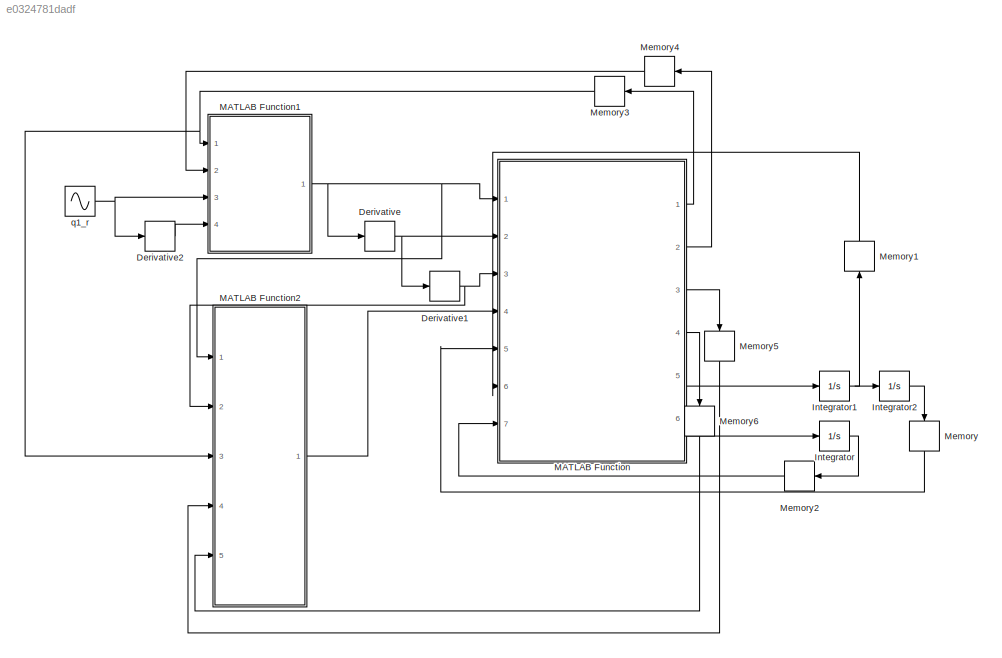
MODEL slx_e0324781dadf
KIND model
CONFIG AbsTol = auto
CONFIG EnableMultiTasking = off
CONFIG FixedStep = 0.001
CONFIG MaxStep = auto
CONFIG MinStep = auto
CONFIG RelTol = 1e-3
CONFIG SampleTimeConstraint = Unconstrained
CONFIG Solver = FixedStepAuto
CONFIG SolverName = FixedStepAuto
CONFIG StartTime = 0.0
CONFIG StopTime = 10.0
BLOCK [Derivative] Derivative
BLOCK [Derivative] Derivative1
BLOCK [Derivative] Derivative2
BLOCK [Integrator] Integrator
  Ports = [1, 1]
BLOCK [Integrator] Integrator1
  Ports = [1, 1]
BLOCK [Integrator] Integrator2
  Ports = [1, 1]
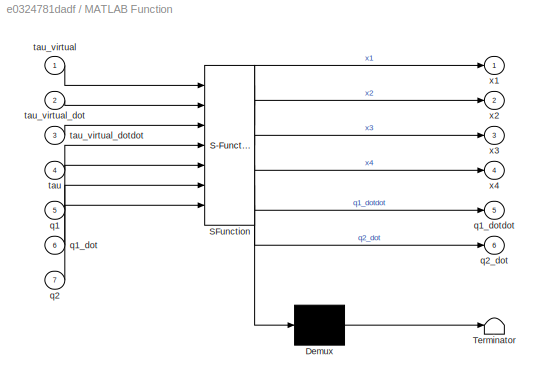
BLOCK [SubSystem] MATLAB Function
  ErrorFcn = Stateflow.Translate.translate
  PermitHierarchicalResolution = ExplicitOnly
  Ports = [7, 6]
  RequestExecContextInheritance = off
  SFBlockType = MATLAB Function
  TreatAsAtomicUnit = on
BLOCK [Demux] MATLAB Function/ Demux 
  Outputs = 1
  Ports = [1, 1]
BLOCK [S-Function] MATLAB Function/ SFunction 
  EnableBusSupport = on
  FunctionName = sf_sfun
  PortCounts = [7 7]
  Ports = [7, 7]
  SFcnIsStateOwnerBlock = off
  SFunctionDeploymentMode = off
  Tag = Stateflow S-Function motor_error 2
BLOCK [Terminator] MATLAB Function/ Terminator 
BLOCK [Inport] MATLAB Function/q1
  IconDisplay = Port number
  Port = 5
BLOCK [Inport] MATLAB Function/q1_dot
  IconDisplay = Port number
  Port = 6
BLOCK [Outport] MATLAB Function/q1_dotdot
  IconDisplay = Port number
  Port = 5
BLOCK [Inport] MATLAB Function/q2
  IconDisplay = Port number
  Port = 7
BLOCK [Outport] MATLAB Function/q2_dot
  IconDisplay = Port number
  Port = 6
BLOCK [Inport] MATLAB Function/tau
  IconDisplay = Port number
  Port = 4
BLOCK [Inport] MATLAB Function/tau_virtual
  IconDisplay = Port number
BLOCK [Inport] MATLAB Function/tau_virtual_dot
  IconDisplay = Port number
  Port = 2
BLOCK [Inport] MATLAB Function/tau_virtual_dotdot
  IconDisplay = Port number
  Port = 3
BLOCK [Outport] MATLAB Function/x1
  IconDisplay = Port number
BLOCK [Outport] MATLAB Function/x2
  IconDisplay = Port number
  Port = 2
BLOCK [Outport] MATLAB Function/x3
  IconDisplay = Port number
  Port = 3
BLOCK [Outport] MATLAB Function/x4
  IconDisplay = Port number
  Port = 4
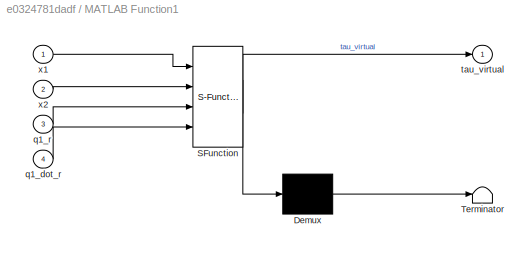
BLOCK [SubSystem] MATLAB Function1
  ErrorFcn = Stateflow.Translate.translate
  PermitHierarchicalResolution = ExplicitOnly
  Ports = [4, 1]
  RequestExecContextInheritance = off
  SFBlockType = MATLAB Function
  TreatAsAtomicUnit = on
BLOCK [Demux] MATLAB Function1/ Demux 
  Outputs = 1
  Ports = [1, 1]
BLOCK [S-Function] MATLAB Function1/ SFunction 
  EnableBusSupport = on
  FunctionName = sf_sfun
  PortCounts = [4 2]
  Ports = [4, 2]
  SFcnIsStateOwnerBlock = off
  SFunctionDeploymentMode = off
  Tag = Stateflow S-Function motor_error 1
BLOCK [Terminator] MATLAB Function1/ Terminator 
BLOCK [Inport] MATLAB Function1/q1_dot_r
  IconDisplay = Port number
  Port = 4
BLOCK [Inport] MATLAB Function1/q1_r
  IconDisplay = Port number
  Port = 3
BLOCK [Outport] MATLAB Function1/tau_virtual
  IconDisplay = Port number
BLOCK [Inport] MATLAB Function1/x1
  IconDisplay = Port number
BLOCK [Inport] MATLAB Function1/x2
  IconDisplay = Port number
  Port = 2
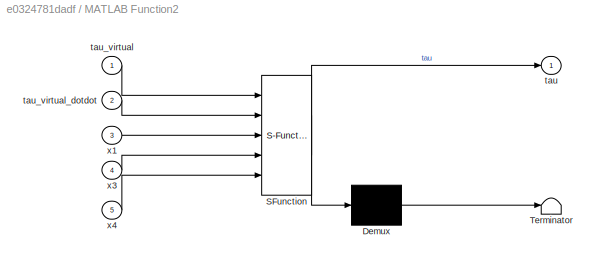
BLOCK [SubSystem] MATLAB Function2
  ErrorFcn = Stateflow.Translate.translate
  PermitHierarchicalResolution = ExplicitOnly
  Ports = [5, 1]
  RequestExecContextInheritance = off
  SFBlockType = MATLAB Function
  TreatAsAtomicUnit = on
BLOCK [Demux] MATLAB Function2/ Demux 
  Outputs = 1
  Ports = [1, 1]
BLOCK [S-Function] MATLAB Function2/ SFunction 
  EnableBusSupport = on
  FunctionName = sf_sfun
  PortCounts = [5 2]
  Ports = [5, 2]
  SFcnIsStateOwnerBlock = off
  SFunctionDeploymentMode = off
  Tag = Stateflow S-Function motor_error 3
BLOCK [Terminator] MATLAB Function2/ Terminator 
BLOCK [Outport] MATLAB Function2/tau
  IconDisplay = Port number
BLOCK [Inport] MATLAB Function2/tau_virtual
  IconDisplay = Port number
BLOCK [Inport] MATLAB Function2/tau_virtual_dotdot
  IconDisplay = Port number
  Port = 2
BLOCK [Inport] MATLAB Function2/x1
  IconDisplay = Port number
  Port = 3
BLOCK [Inport] MATLAB Function2/x3
  IconDisplay = Port number
  Port = 4
BLOCK [Inport] MATLAB Function2/x4
  IconDisplay = Port number
  Port = 5
BLOCK [Memory] Memory
BLOCK [Memory] Memory1
BLOCK [Memory] Memory2
BLOCK [Memory] Memory3
BLOCK [Memory] Memory4
BLOCK [Memory] Memory5
BLOCK [Memory] Memory6
BLOCK [Sin] q1_r
  Ports = [0, 1]
  SampleTime = 0
NET Derivative1:1 -> MATLAB Function2:2, MATLAB Function:3
LINE Derivative2:1 -> MATLAB Function1:4
NET Derivative:1 -> Derivative1:1, MATLAB Function:2
NET Integrator1:1 -> Integrator2:1, Memory1:1
LINE Integrator2:1 -> Memory:1
LINE Integrator:1 -> Memory2:1
NET MATLAB Function1:1 -> Derivative:1, MATLAB Function2:1, MATLAB Function:1
LINE MATLAB Function2:1 -> MATLAB Function:4
LINE MATLAB Function:1 -> Memory3:1
LINE MATLAB Function:2 -> Memory4:1
LINE MATLAB Function:3 -> Memory5:1
LINE MATLAB Function:4 -> Memory6:1
LINE MATLAB Function:5 -> Integrator1:1
LINE MATLAB Function:6 -> Integrator:1
LINE Memory1:1 -> MATLAB Function:6
LINE Memory2:1 -> MATLAB Function:7
NET Memory3:1 -> MATLAB Function1:1, MATLAB Function2:3
LINE Memory4:1 -> MATLAB Function1:2
LINE Memory5:1 -> MATLAB Function2:4
LINE Memory6:1 -> MATLAB Function2:5
LINE Memory:1 -> MATLAB Function:5
NET q1_r:1 -> Derivative2:1, MATLAB Function1:3
note: NET lines group one-source signal fan-out (src -> all destinations, sorted); 1:1 wires keep LINE
CHART MATLAB Function1 states=1 transitions=1
  STATE_LABEL 'eML_blk_kernel()'
  STATE_LABEL 'SCRIPT:\nfunction tau_virtual = fcn(x1,x2,q1_r,q1_dot_r)\n\nT = 10;\nJ = 0.0101;\nM = 0.0320;\nK = 4000;\n\nbeta1 = 2; beta2 = 2;\nalpha1 = 10; alpha2 = 10;\nKp1 = 100; Kd1 =20;\n\nrol1 = norm((-T - K*x1 + M*x2));\ne1 = q1_r - x1;\ne2 = q1_dot_r - x2;\ntau_virtual = (1/K)*((-alpha1*rol1^2-beta1)*(x1+x2) + (-Kp1*e1-Kd1*e2));\n'
CHART MATLAB Function states=1 transitions=1
  STATE_LABEL 'eML_blk_kernel()'
  STATE_LABEL 'SCRIPT:\nfunction [x1,x2,x3,x4,q1_dotdot,q2_dot] = fcn(tau_virtual,tau_virtual_dot,tau_virtual_dotdot,tau,q1,q1_dot,q2)\n\nT = 10;\nJ = 0.0101;\nM = 0.0320;\nK = 4000;\n\nbeta1 = 2; beta2 = 2;\nalpha1 = 10; alpha2 = 10;\nKp1 = 100; Kd1 =20;\n\nx1 = q1;\nx2 = q1_dot;\nx3 = q2 - tau_virtual;\n\n\n\nq1_dotdot = (- T - K*x1 + K*x3 + K*tau_virtual)/M;\nq2_dot = (-J*tau_virtual_dotdot + K*x1 - K*x3 - K*tau_virtual + tau)/...<+52ch>'
CHART MATLAB Function2 states=1 transitions=1
  STATE_LABEL 'eML_blk_kernel()'
  STATE_LABEL 'SCRIPT:\nfunction tau = fcn(tau_virtual,tau_virtual_dotdot,x1,x3,x4)\nT = 10;\nJ = 0.0101;\nM = 0.0320;\nK = 4000;\n\nbeta1 = 2; beta2 = 2;\nalpha1 = 10; alpha2 = 10;\nKp1 = 100; Kd1 =20;\n\nrol2 = norm((-J*tau_virtual_dotdot - K*x3 + K*x1 - K*tau_virtual + J*x4));\n%e2 = q2_r - x2;\ntau = (-alpha2*rol2^2- beta2)*(x4 + x3);\n'
